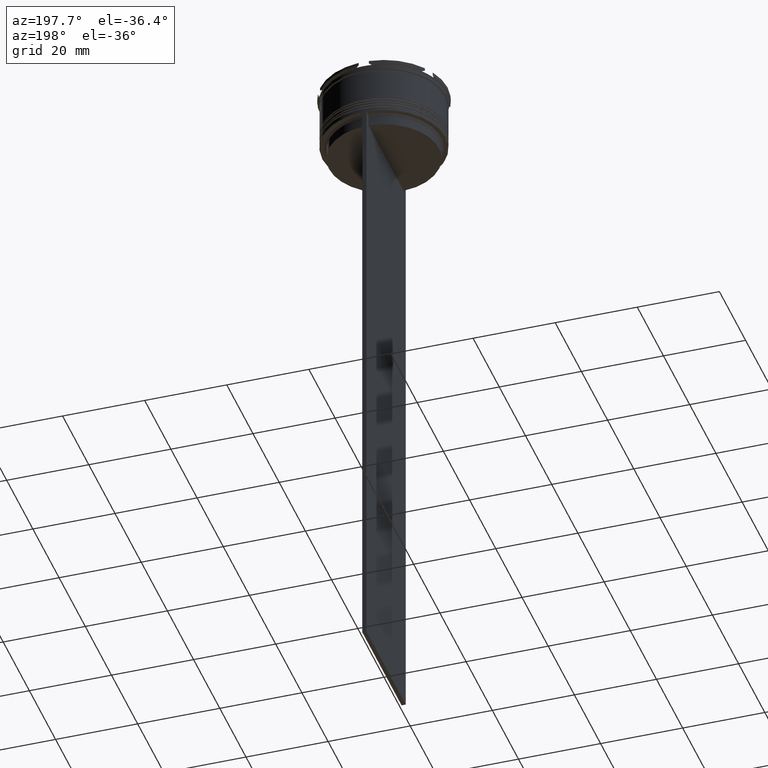
[diagram: clean part render]
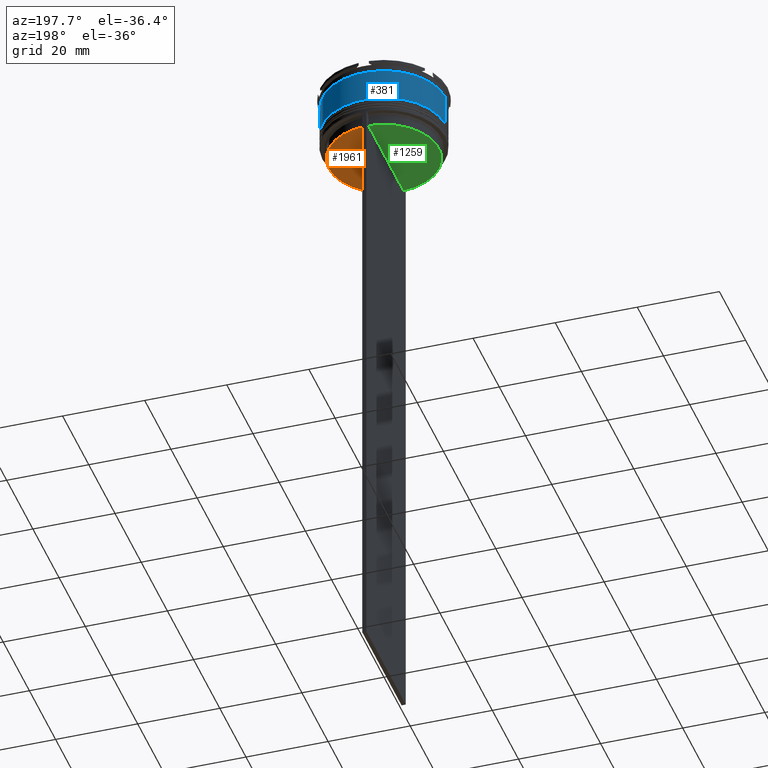
[diagram: same view with three faces highlighted in distinct colors, each labeled with its STEP entity id]
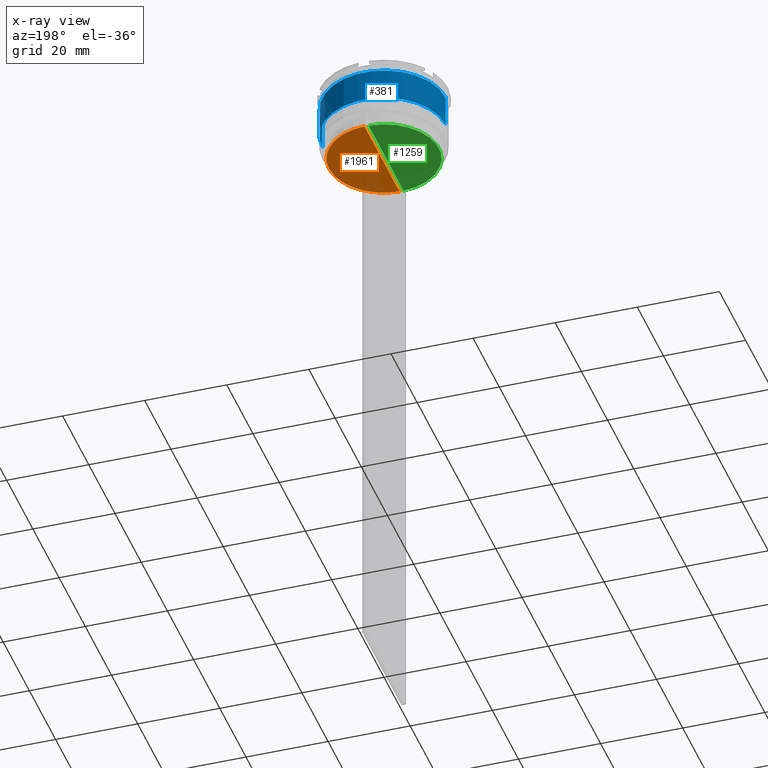
[diagram: x-ray of the same camera — body ghosted, the three highlighted faces saturated]
A machine part, auxiliary view with three faces highlighted in distinct colors.
The next image is the same camera in x-ray (body ghosted, the three faces saturated) — at least one of them is partly hidden behind the body in this view.
Their STEP definitions:

[orange] entity #1961 — the highlighted planar face has unit normal (0, -0, 1).
#203 = DIRECTION ( 'NONE',  ( 1.000000000000000000, 0.000000000000000000, 0.000000000000000000 ) ) ;
#219 = DIRECTION ( 'NONE',  ( -0.000000000000000000, -0.000000000000000000, 1.000000000000000000 ) ) ;
#293 = CARTESIAN_POINT ( 'NONE',  ( 0.5000000000000001110, -13.39066839257847086, -17.00000000000000000 ) ) ;
#605 = AXIS2_PLACEMENT_3D ( 'NONE', #1527, #849, #203 ) ;
#647 = CARTESIAN_POINT ( 'NONE',  ( 0.000000000000000000, 0.000000000000000000, -17.00000000000000000 ) ) ;
#702 = VECTOR ( 'NONE', #955, 1000.000000000000000 ) ;
#757 = EDGE_LOOP ( 'NONE', ( #1253, #1828, #1392 ) ) ;
#849 = DIRECTION ( 'NONE',  ( -0.000000000000000000, -0.000000000000000000, 1.000000000000000000 ) ) ;
#942 = CARTESIAN_POINT ( 'NONE',  ( 0.5000000000000001110, 13.40000000000000391, -17.00000000000000000 ) ) ;
#955 = DIRECTION ( 'NONE',  ( 0.000000000000000000, -1.000000000000000000, 0.000000000000000000 ) ) ;
#1014 = EDGE_CURVE ( 'NONE', #2730, #1625, #1659, .T. ) ;
#1094 = DIRECTION ( 'NONE',  ( 1.000000000000000000, 0.000000000000000000, 0.000000000000000000 ) ) ;
#1253 = ORIENTED_EDGE ( 'NONE', *, *, #2831, .F. ) ;
#1302 = AXIS2_PLACEMENT_3D ( 'NONE', #2426, #2208, #1094 ) ;
#1392 = ORIENTED_EDGE ( 'NONE', *, *, #2652, .F. ) ;
#1489 = CIRCLE ( 'NONE', #605, 13.40000000000000391 ) ;
#1527 = CARTESIAN_POINT ( 'NONE',  ( 0.000000000000000000, 0.000000000000000000, -17.00000000000000000 ) ) ;
#1570 = AXIS2_PLACEMENT_3D ( 'NONE', #647, #219, #1759 ) ;
#1625 = VERTEX_POINT ( 'NONE', #2525 ) ;
#1659 = CIRCLE ( 'NONE', #1570, 13.40000000000000391 ) ;
#1722 = CARTESIAN_POINT ( 'NONE',  ( 13.40000000000000391, 0.000000000000000000, -17.00000000000000000 ) ) ;
#1759 = DIRECTION ( 'NONE',  ( 1.000000000000000000, 0.000000000000000000, 0.000000000000000000 ) ) ;
#1828 = ORIENTED_EDGE ( 'NONE', *, *, #1014, .F. ) ;
#1961 = ADVANCED_FACE ( 'NONE', ( #1978 ), #2864, .F. ) ;
#1978 = FACE_OUTER_BOUND ( 'NONE', #757, .T. ) ;
#2208 = DIRECTION ( 'NONE',  ( 0.000000000000000000, -0.000000000000000000, 1.000000000000000000 ) ) ;
#2426 = CARTESIAN_POINT ( 'NONE',  ( 0.000000000000000000, 13.40000000000000391, -17.00000000000000000 ) ) ;
#2489 = LINE ( 'NONE', #942, #702 ) ;
#2525 = CARTESIAN_POINT ( 'NONE',  ( 0.5000000000000001110, 13.39066839257847086, -17.00000000000000000 ) ) ;
#2652 = EDGE_CURVE ( 'NONE', #2843, #2730, #1489, .T. ) ;
#2730 = VERTEX_POINT ( 'NONE', #1722 ) ;
#2831 = EDGE_CURVE ( 'NONE', #1625, #2843, #2489, .T. ) ;
#2843 = VERTEX_POINT ( 'NONE', #293 ) ;
#2864 = PLANE ( 'NONE',  #1302 ) ;

[blue] entity #381 — the highlighted cylindrical surface (partial cylindrical patch) has radius 15 mm, axis along (-0, -0, 1).
#126 = CARTESIAN_POINT ( 'NONE',  ( 0.000000000000000000, 0.000000000000000000, -2.699999999999999734 ) ) ;
#278 = CIRCLE ( 'NONE', #2581, 15.00000000000000178 ) ;
#349 = DIRECTION ( 'NONE',  ( -0.000000000000000000, -0.000000000000000000, 1.000000000000000000 ) ) ;
#381 = ADVANCED_FACE ( 'NONE', ( #2019 ), #2712, .T. ) ;
#416 = CARTESIAN_POINT ( 'NONE',  ( -15.00000000000000355, 1.836970198721029983E-15, -10.50000000000000178 ) ) ;
#475 = CARTESIAN_POINT ( 'NONE',  ( 0.000000000000000000, 0.000000000000000000, 0.000000000000000000 ) ) ;
#512 = CIRCLE ( 'NONE', #2130, 14.99999999999999822 ) ;
#541 = CARTESIAN_POINT ( 'NONE',  ( 0.000000000000000000, 0.000000000000000000, -10.50000000000000178 ) ) ;
#735 = CARTESIAN_POINT ( 'NONE',  ( 14.99999999999999822, 0.000000000000000000, -2.699999999999999734 ) ) ;
#738 = DIRECTION ( 'NONE',  ( 1.000000000000000000, 0.000000000000000000, 0.000000000000000000 ) ) ;
#950 = DIRECTION ( 'NONE',  ( -0.000000000000000000, -0.000000000000000000, 1.000000000000000000 ) ) ;
#1010 = DIRECTION ( 'NONE',  ( -0.000000000000000000, -0.000000000000000000, 1.000000000000000000 ) ) ;
#1028 = DIRECTION ( 'NONE',  ( 1.000000000000000000, 0.000000000000000000, 0.000000000000000000 ) ) ;
#1044 = DIRECTION ( 'NONE',  ( -0.000000000000000000, -0.000000000000000000, 1.000000000000000000 ) ) ;
#1181 = ORIENTED_EDGE ( 'NONE', *, *, #2602, .F. ) ;
#1335 = EDGE_CURVE ( 'NONE', #1838, #1873, #278, .T. ) ;
#1346 = EDGE_CURVE ( 'NONE', #1873, #2559, #2769, .T. ) ;
#1396 = VECTOR ( 'NONE', #1537, 1000.000000000000000 ) ;
#1459 = CARTESIAN_POINT ( 'NONE',  ( -14.99999999999999822, 1.836970198721029194E-15, -2.699999999999999734 ) ) ;
#1477 = AXIS2_PLACEMENT_3D ( 'NONE', #475, #950, #738 ) ;
#1518 = LINE ( 'NONE', #2852, #1396 ) ;
#1537 = DIRECTION ( 'NONE',  ( -0.000000000000000000, -0.000000000000000000, 1.000000000000000000 ) ) ;
#1577 = CARTESIAN_POINT ( 'NONE',  ( 15.00000000000000178, 0.000000000000000000, -10.50000000000000178 ) ) ;
#1838 = VERTEX_POINT ( 'NONE', #1577 ) ;
#1873 = VERTEX_POINT ( 'NONE', #416 ) ;
#1885 = EDGE_LOOP ( 'NONE', ( #2526, #1990, #1181, #2243 ) ) ;
#1982 = EDGE_CURVE ( 'NONE', #1838, #1998, #1518, .T. ) ;
#1990 = ORIENTED_EDGE ( 'NONE', *, *, #1346, .T. ) ;
#1998 = VERTEX_POINT ( 'NONE', #735 ) ;
#2019 = FACE_OUTER_BOUND ( 'NONE', #1885, .T. ) ;
#2028 = VECTOR ( 'NONE', #1044, 1000.000000000000000 ) ;
#2130 = AXIS2_PLACEMENT_3D ( 'NONE', #126, #349, #2533 ) ;
#2243 = ORIENTED_EDGE ( 'NONE', *, *, #1982, .F. ) ;
#2526 = ORIENTED_EDGE ( 'NONE', *, *, #1335, .T. ) ;
#2533 = DIRECTION ( 'NONE',  ( 1.000000000000000000, 0.000000000000000000, 0.000000000000000000 ) ) ;
#2559 = VERTEX_POINT ( 'NONE', #1459 ) ;
#2581 = AXIS2_PLACEMENT_3D ( 'NONE', #541, #1010, #1028 ) ;
#2602 = EDGE_CURVE ( 'NONE', #1998, #2559, #512, .T. ) ;
#2712 = CYLINDRICAL_SURFACE ( 'NONE', #1477, 15.00000000000000000 ) ;
#2769 = LINE ( 'NONE', #2801, #2028 ) ;
#2801 = CARTESIAN_POINT ( 'NONE',  ( -15.00000000000000000, 1.836970198721029589E-15, 0.000000000000000000 ) ) ;
#2852 = CARTESIAN_POINT ( 'NONE',  ( 15.00000000000000000, 0.000000000000000000, 0.000000000000000000 ) ) ;

[green] entity #1259 — the highlighted planar face has unit normal (0, -0, 1).
#128 = AXIS2_PLACEMENT_3D ( 'NONE', #1721, #1555, #833 ) ;
#164 = EDGE_LOOP ( 'NONE', ( #1683, #1357 ) ) ;
#267 = CARTESIAN_POINT ( 'NONE',  ( 0.000000000000000000, 13.40000000000000391, -17.00000000000000000 ) ) ;
#810 = CARTESIAN_POINT ( 'NONE',  ( -0.4999999999999998890, -13.39066839257847086, -17.00000000000000000 ) ) ;
#833 = DIRECTION ( 'NONE',  ( 1.000000000000000000, 0.000000000000000000, 0.000000000000000000 ) ) ;
#961 = VERTEX_POINT ( 'NONE', #2645 ) ;
#1157 = FACE_OUTER_BOUND ( 'NONE', #164, .T. ) ;
#1259 = ADVANCED_FACE ( 'NONE', ( #1157 ), #2288, .F. ) ;
#1357 = ORIENTED_EDGE ( 'NONE', *, *, #1454, .T. ) ;
#1416 = EDGE_CURVE ( 'NONE', #961, #1829, #1663, .T. ) ;
#1454 = EDGE_CURVE ( 'NONE', #961, #1829, #2147, .T. ) ;
#1555 = DIRECTION ( 'NONE',  ( -0.000000000000000000, -0.000000000000000000, 1.000000000000000000 ) ) ;
#1599 = DIRECTION ( 'NONE',  ( 1.000000000000000000, 0.000000000000000000, 0.000000000000000000 ) ) ;
#1663 = CIRCLE ( 'NONE', #128, 13.40000000000000391 ) ;
#1683 = ORIENTED_EDGE ( 'NONE', *, *, #1416, .F. ) ;
#1721 = CARTESIAN_POINT ( 'NONE',  ( 0.000000000000000000, 0.000000000000000000, -17.00000000000000000 ) ) ;
#1801 = AXIS2_PLACEMENT_3D ( 'NONE', #267, #1819, #1599 ) ;
#1819 = DIRECTION ( 'NONE',  ( 0.000000000000000000, -0.000000000000000000, 1.000000000000000000 ) ) ;
#1829 = VERTEX_POINT ( 'NONE', #810 ) ;
#2147 = LINE ( 'NONE', #2855, #2631 ) ;
#2288 = PLANE ( 'NONE',  #1801 ) ;
#2605 = DIRECTION ( 'NONE',  ( 0.000000000000000000, -1.000000000000000000, 0.000000000000000000 ) ) ;
#2631 = VECTOR ( 'NONE', #2605, 1000.000000000000000 ) ;
#2645 = CARTESIAN_POINT ( 'NONE',  ( -0.4999999999999998890, 13.39066839257847086, -17.00000000000000000 ) ) ;
#2855 = CARTESIAN_POINT ( 'NONE',  ( -0.4999999999999998890, 13.40000000000000391, -17.00000000000000000 ) ) ;